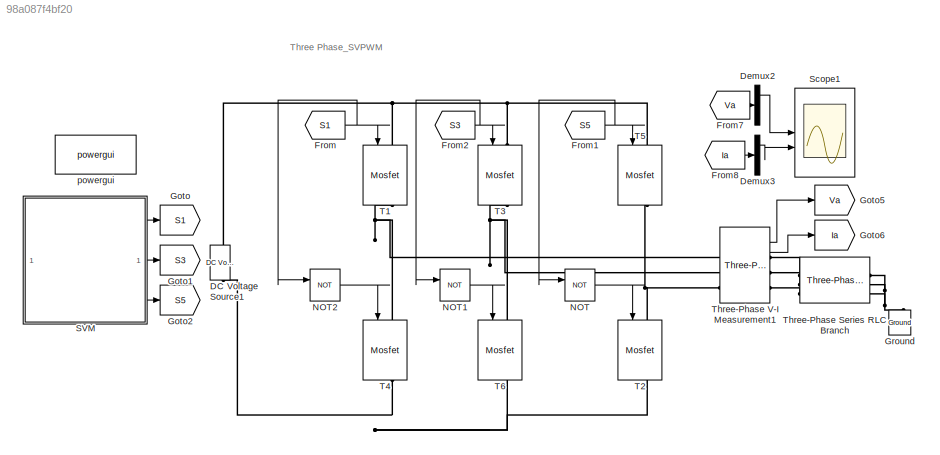
MODEL slx_98a087f4bf20
KIND model
CONFIG AbsTol = auto
CONFIG EnableMultiTasking = off
CONFIG FixedStep = auto
CONFIG MaxStep = 1e-4
CONFIG MinStep = auto
CONFIG RelTol = 1e-3
CONFIG SampleTimeConstraint = Unconstrained
CONFIG SolverName = ode23t
CONFIG StartTime = 0.0
CONFIG StopTime = 0.05
BLOCK [Reference] DC Voltage Source1  REF=spsDCVoltageSourceLib/DC Voltage Source
  LibrarySourceBlock = sps_lib/Sources/DC Voltage Source
  SourceBlock = spsDCVoltageSourceLib/DC Voltage Source
  SourceType = DC Voltage Source
BLOCK [Demux] Demux2
  Outputs = 3
BLOCK [Demux] Demux3
  Outputs = 3
BLOCK [From] From
  GotoTag = S1
BLOCK [From] From1
  GotoTag = S5
BLOCK [From] From2
  GotoTag = S3
BLOCK [From] From7
  GotoTag = Va
BLOCK [From] From8
  GotoTag = Ia
BLOCK [Goto] Goto
  GotoTag = S1
BLOCK [Goto] Goto1
  GotoTag = S3
BLOCK [Goto] Goto2
  GotoTag = S5
BLOCK [Goto] Goto5
  GotoTag = Va
BLOCK [Goto] Goto6
  GotoTag = Ia
BLOCK [Reference] Ground  REF=spsGroundLib/Ground
  LibrarySourceBlock = sps_lib/Utilities/Ground
  NameLocation = right
  SourceBlock = spsGroundLib/Ground
  SourceType = Ground
BLOCK [Logic] NOT
  AllPortsSameDT = off
  Operator = NOT
  OutDataTypeStr = boolean
BLOCK [Logic] NOT1
  AllPortsSameDT = off
  Operator = NOT
  OutDataTypeStr = boolean
BLOCK [Logic] NOT2
  AllPortsSameDT = off
  Operator = NOT
  OutDataTypeStr = boolean
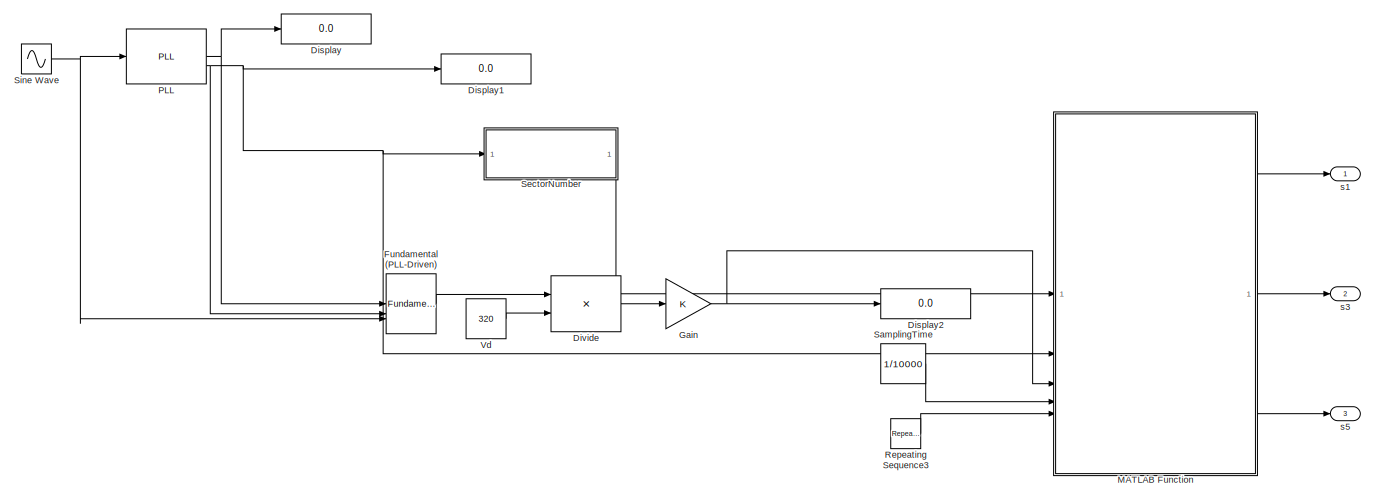
[diagram: SVM - part 1/2, left side, full height]
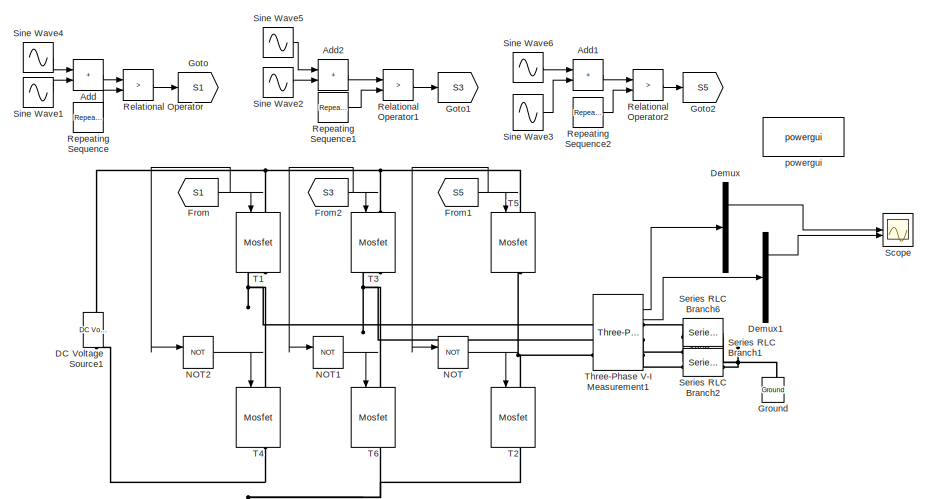
[diagram: SVM - part 2/2, right side, full height]
BLOCK [SubSystem] SVM
BLOCK [Sum] SVM/Add
  IconShape = rectangular
BLOCK [Sum] SVM/Add1
  IconShape = rectangular
BLOCK [Sum] SVM/Add2
  IconShape = rectangular
BLOCK [Reference] SVM/DC Voltage Source1  REF=spsDCVoltageSourceLib/DC Voltage Source
  LibrarySourceBlock = sps_lib/Sources/DC Voltage Source
  SourceBlock = spsDCVoltageSourceLib/DC Voltage Source
  SourceType = DC Voltage Source
BLOCK [Demux] SVM/Demux
  Outputs = 3
BLOCK [Demux] SVM/Demux1
  Outputs = 3
BLOCK [Display] SVM/Display
  Decimation = 1
BLOCK [Display] SVM/Display1
  Decimation = 1
BLOCK [Display] SVM/Display2
  Decimation = 1
BLOCK [Product] SVM/Divide
  Inputs = */
BLOCK [From] SVM/From
  GotoTag = S1
BLOCK [From] SVM/From1
  GotoTag = S5
BLOCK [From] SVM/From2
  GotoTag = S3
BLOCK [Reference] SVM/Fundamental (PLL-Driven)  REF=spsFundamentalPLLDrivenLib/Fundamental
(PLL-Driven)
  LibrarySourceBlock = sps_lib/Sensors and Measurements/Fundamental\n(PLL-Driven)
  SourceBlock = spsFundamentalPLLDrivenLib/Fundamental\n(PLL-Driven)
  SourceType = Fundamental (PLL-Driven)
BLOCK [Gain] SVM/Gain
BLOCK [Goto] SVM/Goto
  GotoTag = S1
BLOCK [Goto] SVM/Goto1
  GotoTag = S3
BLOCK [Goto] SVM/Goto2
  GotoTag = S5
BLOCK [Reference] SVM/Ground  REF=spsGroundLib/Ground
  LibrarySourceBlock = sps_lib/Utilities/Ground
  NameLocation = right
  SourceBlock = spsGroundLib/Ground
  SourceType = Ground
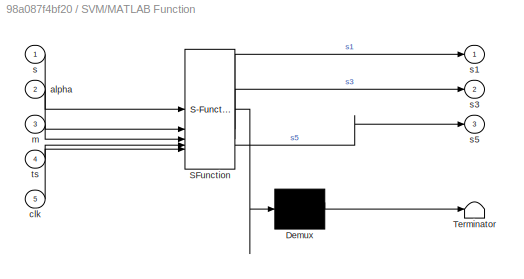
BLOCK [SubSystem] SVM/MATLAB Function
  ErrorFcn = Stateflow.Translate.translate
  LibrarySourceBlock = simulink/User-Defined\nFunctions/MATLAB Function
  PermitHierarchicalResolution = ExplicitOnly
  SFBlockType = MATLAB Function
  TreatAsAtomicUnit = on
BLOCK [Demux] SVM/MATLAB Function/ Demux 
  Outputs = 1
BLOCK [S-Function] SVM/MATLAB Function/ SFunction 
  EnableBusSupport = on
  FunctionName = sf_sfun
  PortCounts = [5 4]
  SFcnIsStateOwnerBlock = off
  SFunctionDeploymentMode = off
  Tag = Stateflow S-Function 1
BLOCK [Terminator] SVM/MATLAB Function/ Terminator 
BLOCK [Inport] SVM/MATLAB Function/alpha
  Port = 2
BLOCK [Inport] SVM/MATLAB Function/clk
  Port = 5
BLOCK [Inport] SVM/MATLAB Function/m
  Port = 3
BLOCK [Inport] SVM/MATLAB Function/s
BLOCK [Outport] SVM/MATLAB Function/s1
BLOCK [Outport] SVM/MATLAB Function/s3
  Port = 2
BLOCK [Outport] SVM/MATLAB Function/s5
  Port = 3
BLOCK [Inport] SVM/MATLAB Function/ts
  Port = 4
BLOCK [Logic] SVM/NOT
  AllPortsSameDT = off
  Operator = NOT
  OutDataTypeStr = boolean
BLOCK [Logic] SVM/NOT1
  AllPortsSameDT = off
  Operator = NOT
  OutDataTypeStr = boolean
BLOCK [Logic] SVM/NOT2
  AllPortsSameDT = off
  Operator = NOT
  OutDataTypeStr = boolean
BLOCK [Reference] SVM/PLL  REF=spsPLLLib/PLL
  LibrarySourceBlock = sps_lib/Control/PLL
  SourceBlock = spsPLLLib/PLL
  SourceType = PLL
BLOCK [RelationalOperator] SVM/Relational Operator
  InputSameDT = off
  Operator = >
  OutDataTypeStr = boolean
  RndMeth = Simplest
BLOCK [RelationalOperator] SVM/Relational Operator1
  InputSameDT = off
  Operator = >
  OutDataTypeStr = boolean
  RndMeth = Simplest
BLOCK [RelationalOperator] SVM/Relational Operator2
  InputSameDT = off
  Operator = >
  OutDataTypeStr = boolean
  RndMeth = Simplest
BLOCK [Reference] SVM/Repeating Sequence  REF=simulink/Sources/Repeating
Sequence
  SourceBlock = simulink/Sources/Repeating\nSequence
  SourceType = Repeating table
BLOCK [Reference] SVM/Repeating Sequence1  REF=simulink/Sources/Repeating
Sequence
  SourceBlock = simulink/Sources/Repeating\nSequence
  SourceType = Repeating table
BLOCK [Reference] SVM/Repeating Sequence2  REF=simulink/Sources/Repeating
Sequence
  SourceBlock = simulink/Sources/Repeating\nSequence
  SourceType = Repeating table
BLOCK [Reference] SVM/Repeating Sequence3  REF=simulink/Sources/Repeating
Sequence
  SourceBlock = simulink/Sources/Repeating\nSequence
  SourceType = Repeating table
BLOCK [Constant] SVM/SamplingTime
  Value = 1/10000
BLOCK [Scope] SVM/Scope
  Floating = off
  NumInputPorts = 2
  ScopeSpecificationString = Simulink.scopes.TimeScopeBlockCfg('CurrentConfiguration', extmgr.ConfigurationSet(extmgr.Configuration('Core','General UI',true),extmgr.Configuration('Core','Source UI',true),extmgr.Configuration('Sources','WiredSimulink',true,'DataLogging',true,'DataLoggingSaveFormat','StructureWithTime','DataLoggingVariableName','ScopeData1'),extmgr.Configuration('Visuals','Time Domain',true,'SerializedDisplays'...<+2110ch>
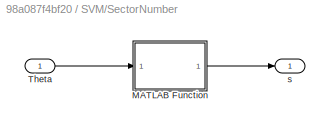
BLOCK [SubSystem] SVM/SectorNumber
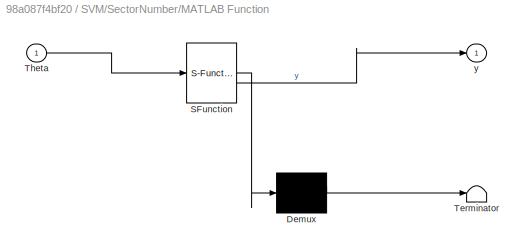
BLOCK [SubSystem] SVM/SectorNumber/MATLAB Function
  ErrorFcn = Stateflow.Translate.translate
  LibrarySourceBlock = simulink/User-Defined\nFunctions/MATLAB Function
  PermitHierarchicalResolution = ExplicitOnly
  SFBlockType = MATLAB Function
  TreatAsAtomicUnit = on
BLOCK [Demux] SVM/SectorNumber/MATLAB Function/ Demux 
  Outputs = 1
BLOCK [S-Function] SVM/SectorNumber/MATLAB Function/ SFunction 
  EnableBusSupport = on
  FunctionName = sf_sfun
  PortCounts = [1 2]
  SFcnIsStateOwnerBlock = off
  SFunctionDeploymentMode = off
  Tag = Stateflow S-Function 2
BLOCK [Terminator] SVM/SectorNumber/MATLAB Function/ Terminator 
BLOCK [Inport] SVM/SectorNumber/MATLAB Function/Theta
BLOCK [Outport] SVM/SectorNumber/MATLAB Function/y
BLOCK [Inport] SVM/SectorNumber/Theta
BLOCK [Outport] SVM/SectorNumber/s
BLOCK [Reference] SVM/Series RLC Branch1  REF=spsSeriesRLCBranchLib/Series RLC Branch
  LibrarySourceBlock = sps_lib/Passives/Series RLC Branch
  SourceBlock = spsSeriesRLCBranchLib/Series RLC Branch
  SourceType = Series RLC Branch
BLOCK [Reference] SVM/Series RLC Branch2  REF=spsSeriesRLCBranchLib/Series RLC Branch
  LibrarySourceBlock = sps_lib/Passives/Series RLC Branch
  SourceBlock = spsSeriesRLCBranchLib/Series RLC Branch
  SourceType = Series RLC Branch
BLOCK [Reference] SVM/Series RLC Branch6  REF=spsSeriesRLCBranchLib/Series RLC Branch
  LibrarySourceBlock = sps_lib/Passives/Series RLC Branch
  SourceBlock = spsSeriesRLCBranchLib/Series RLC Branch
  SourceType = Series RLC Branch
BLOCK [Sin] SVM/Sine Wave
  Amplitude = 220*sqrt(2)
  Frequency = 100*pi
  SampleTime = 1/10000
BLOCK [Sin] SVM/Sine Wave1
  Amplitude = 1.15
  Frequency = 100*pi
  SampleTime = 0
BLOCK [Sin] SVM/Sine Wave2
  Amplitude = 1.15
  Frequency = 100*pi
  Phase = 120*pi/180
  SampleTime = 0
BLOCK [Sin] SVM/Sine Wave3
  Amplitude = 1.15
  Frequency = 100*pi
  Phase = 240*pi/180
  SampleTime = 0
BLOCK [Sin] SVM/Sine Wave4
  Amplitude = 0.19
  Frequency = 100*pi*3
  SampleTime = 0
BLOCK [Sin] SVM/Sine Wave5
  Amplitude = 0.19
  Frequency = 100*pi*3
  Phase = 120*pi/180
  SampleTime = 0
BLOCK [Sin] SVM/Sine Wave6
  Amplitude = 0.19
  Frequency = 100*pi*3
  Phase = 240*pi/180
  SampleTime = 0
BLOCK [Reference] SVM/T1  REF=spsMosfetLib/Mosfet
  LibrarySourceBlock = sps_lib/Power Electronics/Mosfet
  NameLocation = left
  SourceBlock = spsMosfetLib/Mosfet
  SourceType = Mosfet
BLOCK [Reference] SVM/T2  REF=spsMosfetLib/Mosfet
  LibrarySourceBlock = sps_lib/Power Electronics/Mosfet
  NameLocation = left
  SourceBlock = spsMosfetLib/Mosfet
  SourceType = Mosfet
BLOCK [Reference] SVM/T3  REF=spsMosfetLib/Mosfet
  LibrarySourceBlock = sps_lib/Power Electronics/Mosfet
  NameLocation = left
  SourceBlock = spsMosfetLib/Mosfet
  SourceType = Mosfet
BLOCK [Reference] SVM/T4  REF=spsMosfetLib/Mosfet
  LibrarySourceBlock = sps_lib/Power Electronics/Mosfet
  NameLocation = left
  SourceBlock = spsMosfetLib/Mosfet
  SourceType = Mosfet
BLOCK [Reference] SVM/T5  REF=spsMosfetLib/Mosfet
  LibrarySourceBlock = sps_lib/Power Electronics/Mosfet
  NameLocation = left
  SourceBlock = spsMosfetLib/Mosfet
  SourceType = Mosfet
BLOCK [Reference] SVM/T6  REF=spsMosfetLib/Mosfet
  LibrarySourceBlock = sps_lib/Power Electronics/Mosfet
  NameLocation = left
  SourceBlock = spsMosfetLib/Mosfet
  SourceType = Mosfet
BLOCK [Reference] SVM/Three-Phase V-I Measurement1  REF=spsThreePhaseVIMeasurementLib/Three-Phase
V-I Measurement
  LibrarySourceBlock = sps_lib/Sensors and Measurements/Three-Phase\nV-I Measurement
  SourceBlock = spsThreePhaseVIMeasurementLib/Three-Phase\nV-I Measurement
  SourceType = Three-Phase VI Measurement
BLOCK [Constant] SVM/Vd
  Value = 320
BLOCK [Reference] SVM/powergui  REF=spspowerguiLib/powergui
  LibrarySourceBlock = sps_lib/powergui
  Priority = 1
  SourceBlock = spspowerguiLib/powergui
  SourceType = PSB option menu block
BLOCK [Outport] SVM/s1
BLOCK [Outport] SVM/s3
  Port = 2
BLOCK [Outport] SVM/s5
  Port = 3
BLOCK [Scope] Scope1
  Floating = off
  NumInputPorts = 2
  ScopeSpecificationString = Simulink.scopes.TimeScopeBlockCfg('CurrentConfiguration', extmgr.ConfigurationSet(extmgr.Configuration('Core','General UI',true),extmgr.Configuration('Core','Source UI',true),extmgr.Configuration('Sources','WiredSimulink',true,'DataLoggingVariableName','ScopeData1'),extmgr.Configuration('Visuals','Time Domain',true,'SerializedDisplays',{struct('MinYLimReal','-264.02588','MaxYLimReal','264.02588','...<+2124ch>
BLOCK [Reference] T1  REF=spsMosfetLib/Mosfet
  LibrarySourceBlock = sps_lib/Power Electronics/Mosfet
  NameLocation = left
  SourceBlock = spsMosfetLib/Mosfet
  SourceType = Mosfet
BLOCK [Reference] T2  REF=spsMosfetLib/Mosfet
  LibrarySourceBlock = sps_lib/Power Electronics/Mosfet
  NameLocation = left
  SourceBlock = spsMosfetLib/Mosfet
  SourceType = Mosfet
BLOCK [Reference] T3  REF=spsMosfetLib/Mosfet
  LibrarySourceBlock = sps_lib/Power Electronics/Mosfet
  NameLocation = left
  SourceBlock = spsMosfetLib/Mosfet
  SourceType = Mosfet
BLOCK [Reference] T4  REF=spsMosfetLib/Mosfet
  LibrarySourceBlock = sps_lib/Power Electronics/Mosfet
  NameLocation = left
  SourceBlock = spsMosfetLib/Mosfet
  SourceType = Mosfet
BLOCK [Reference] T5  REF=spsMosfetLib/Mosfet
  LibrarySourceBlock = sps_lib/Power Electronics/Mosfet
  NameLocation = left
  SourceBlock = spsMosfetLib/Mosfet
  SourceType = Mosfet
BLOCK [Reference] T6  REF=spsMosfetLib/Mosfet
  LibrarySourceBlock = sps_lib/Power Electronics/Mosfet
  NameLocation = left
  SourceBlock = spsMosfetLib/Mosfet
  SourceType = Mosfet
BLOCK [Reference] Three-Phase Series RLC Branch  REF=spsThreePhaseSeriesRLCBranchLib/Three-Phase
Series RLC Branch
  AttributesFormatString = \n
  LibrarySourceBlock = sps_lib/Passives/Three-Phase\nSeries RLC Branch
  SourceBlock = spsThreePhaseSeriesRLCBranchLib/Three-Phase\nSeries RLC Branch
  SourceType = Three-Phase Series RLC Branch
BLOCK [Reference] Three-Phase V-I Measurement1  REF=spsThreePhaseVIMeasurementLib/Three-Phase
V-I Measurement
  LibrarySourceBlock = sps_lib/Sensors and Measurements/Three-Phase\nV-I Measurement
  SourceBlock = spsThreePhaseVIMeasurementLib/Three-Phase\nV-I Measurement
  SourceType = Three-Phase VI Measurement
BLOCK [Reference] powergui  REF=spspowerguiLib/powergui
  Priority = 1
  SourceBlock = spspowerguiLib/powergui
  SourceType = PSB option menu block
ANNOTATION (root): Three Phase_SVPWM
LINE Demux2:1 -> Scope1:1
LINE Demux3:1 -> Scope1:2
NET From1:1 -> NOT:1, T5:1
NET From2:1 -> NOT1:1, T3:1
LINE From7:1 -> Demux2:1
LINE From8:1 -> Demux3:1
NET From:1 -> NOT2:1, T1:1
LINE NOT1:1 -> T6:1
LINE NOT2:1 -> T4:1
LINE NOT:1 -> T2:1
LINE SVM/Add1:1 -> SVM/Relational Operator2:1
LINE SVM/Add2:1 -> SVM/Relational Operator1:1
LINE SVM/Add:1 -> SVM/Relational Operator:1
LINE SVM/Demux1:1 -> SVM/Scope:2
LINE SVM/Demux:1 -> SVM/Scope:1
LINE SVM/Divide:1 -> SVM/Gain:1
NET SVM/From1:1 -> SVM/NOT:1, SVM/T5:1
NET SVM/From2:1 -> SVM/NOT1:1, SVM/T3:1
NET SVM/From:1 -> SVM/NOT2:1, SVM/T1:1
LINE SVM/Fundamental (PLL-Driven):1 -> SVM/Divide:1
NET SVM/Gain:1 -> SVM/Display2:1, SVM/MATLAB Function:3
LINE SVM/MATLAB Function:1 -> SVM/s1:1
LINE SVM/MATLAB Function:2 -> SVM/s3:1
LINE SVM/MATLAB Function:3 -> SVM/s5:1
LINE SVM/NOT1:1 -> SVM/T6:1
LINE SVM/NOT2:1 -> SVM/T4:1
LINE SVM/NOT:1 -> SVM/T2:1
NET SVM/PLL:1 -> SVM/Display:1, SVM/Fundamental (PLL-Driven):1
NET SVM/PLL:2 -> SVM/Display1:1, SVM/Fundamental (PLL-Driven):2, SVM/MATLAB Function:2, SVM/SectorNumber:1
LINE SVM/Relational Operator1:1 -> SVM/Goto1:1
LINE SVM/Relational Operator2:1 -> SVM/Goto2:1
LINE SVM/Relational Operator:1 -> SVM/Goto:1
LINE SVM/Repeating Sequence1:1 -> SVM/Relational Operator1:2
LINE SVM/Repeating Sequence2:1 -> SVM/Relational Operator2:2
LINE SVM/Repeating Sequence3:1 -> SVM/MATLAB Function:5
LINE SVM/Repeating Sequence:1 -> SVM/Relational Operator:2
LINE SVM/SamplingTime:1 -> SVM/MATLAB Function:4
LINE SVM/SectorNumber/MATLAB Function:1 -> SVM/SectorNumber/s:1
LINE SVM/SectorNumber/Theta:1 -> SVM/SectorNumber/MATLAB Function:1
LINE SVM/SectorNumber:1 -> SVM/MATLAB Function:1
LINE SVM/Sine Wave1:1 -> SVM/Add:2
LINE SVM/Sine Wave2:1 -> SVM/Add2:2
LINE SVM/Sine Wave3:1 -> SVM/Add1:2
LINE SVM/Sine Wave4:1 -> SVM/Add:1
LINE SVM/Sine Wave5:1 -> SVM/Add2:1
LINE SVM/Sine Wave6:1 -> SVM/Add1:1
NET SVM/Sine Wave:1 -> SVM/Fundamental (PLL-Driven):3, SVM/PLL:1
LINE SVM/Three-Phase V-I Measurement1:1 -> SVM/Demux:1
LINE SVM/Three-Phase V-I Measurement1:2 -> SVM/Demux1:1
LINE SVM/Vd:1 -> SVM/Divide:2
LINE SVM:1 -> Goto:1
LINE SVM:2 -> Goto1:1
LINE SVM:3 -> Goto2:1
LINE Three-Phase V-I Measurement1:1 -> Goto5:1
LINE Three-Phase V-I Measurement1:2 -> Goto6:1
PNET net1: DC Voltage Source1:LConn1 -- T2:RConn1 -- T4:RConn1 -- T6:RConn1
PNET net2: DC Voltage Source1:RConn1 -- T1:LConn1 -- T3:LConn1 -- T5:LConn1
PNET net3: Ground:LConn1 -- Three-Phase Series RLC Branch:RConn1 -- Three-Phase Series RLC Branch:RConn2 -- Three-Phase Series RLC Branch:RConn3
PNET net4: SVM/DC Voltage Source1:LConn1 -- SVM/T2:RConn1 -- SVM/T4:RConn1 -- SVM/T6:RConn1
PNET net5: SVM/DC Voltage Source1:RConn1 -- SVM/T1:LConn1 -- SVM/T3:LConn1 -- SVM/T5:LConn1
PNET net6: SVM/Ground:LConn1 -- SVM/Series RLC Branch1:RConn1 -- SVM/Series RLC Branch2:RConn1 -- SVM/Series RLC Branch6:RConn1
PLINE SVM/Series RLC Branch1:LConn1 -- SVM/Three-Phase V-I Measurement1:RConn2
PLINE SVM/Series RLC Branch2:LConn1 -- SVM/Three-Phase V-I Measurement1:RConn3
PLINE SVM/Series RLC Branch6:LConn1 -- SVM/Three-Phase V-I Measurement1:RConn1
PNET net7: SVM/T1:RConn1 -- SVM/T4:LConn1 -- SVM/Three-Phase V-I Measurement1:LConn1
PNET net8: SVM/T2:LConn1 -- SVM/T5:RConn1 -- SVM/Three-Phase V-I Measurement1:LConn3
PNET net9: SVM/T3:RConn1 -- SVM/T6:LConn1 -- SVM/Three-Phase V-I Measurement1:LConn2
PNET net10: T1:RConn1 -- T4:LConn1 -- Three-Phase V-I Measurement1:LConn1
PNET net11: T2:LConn1 -- T5:RConn1 -- Three-Phase V-I Measurement1:LConn3
PNET net12: T3:RConn1 -- T6:LConn1 -- Three-Phase V-I Measurement1:LConn2
PLINE Three-Phase Series RLC Branch:LConn1 -- Three-Phase V-I Measurement1:RConn1
PLINE Three-Phase Series RLC Branch:LConn2 -- Three-Phase V-I Measurement1:RConn2
PLINE Three-Phase Series RLC Branch:LConn3 -- Three-Phase V-I Measurement1:RConn3
note: NET lines group one-source signal fan-out (src -> all destinations, sorted); 1:1 wires keep LINE; PNET lines group multi-terminal physical nets as a canonical sorted terminal list (undirected conserving connections); 2-terminal nets keep the pairwise PLINE form
CHART SVM/MATLAB Function states=1 transitions=1
  STATE_LABEL 'eML_blk_kernel()'
  STATE_LABEL 'SCRIPT:\nfunction [s1,s3,s5] = fcn(s,alpha,m,ts,clk)\n\nta = ts * m * sin(pi/3-(alpha-(s-1)*pi/3));\ntb = ts * m * sin(alpha-(s-1)*pi/3);\nt0=ts - (ta+tb) ;\n\nswitch(s)\n    case(1)\n        if( (clk>t0/4)  &&  (clk<(t0/4+ta/2+tb/2+t0/2+tb/2+ta/2)) )\n            s1=1;\n        else\n            s1=0;\n        end\n        if( (clk>(t0/4+ta/2))  &&  (clk<(t0/4+ta/2+tb/2+t0/2+tb/2)) )\n            s3=1;\n        ...<+2255ch>'
CHART SVM/SectorNumber/MATLAB Function states=1 transitions=1
  STATE_LABEL 'eML_blk_kernel()'
  STATE_LABEL 'SCRIPT:\nfunction y = fcn(Theta)\n%#eml\nif( ( Theta >= 0 ) && ( Theta <= (pi/3) ) )\n    u = 1 ;\n\nelseif( ( Theta > (pi/3) ) && ( Theta <= (2*pi/3) ) )\n    u = 2 ;\n\nelseif( ( Theta > (2*pi/3) ) && ( Theta <= (pi) ) )\n    u = 3 ;\n\nelseif( ( Theta > (pi) ) && ( Theta <= (4*pi/3) ) )\n    u = 4 ;\n\nelseif( ( Theta > (4*pi/3) ) && ( Theta <= (5*pi/3) ) )\n    u = 5 ;\n\nelse\n    u = 6 ;\n\nend\ny=u;\n\n'
CHART  states=0 transitions=0
CHART  states=0 transitions=0
